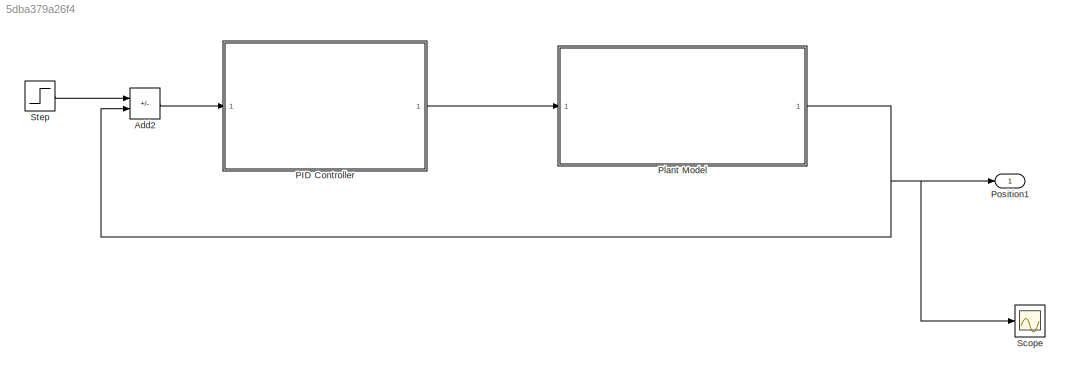
MODEL slx_5dba379a26f4
KIND model
CONFIG AbsTol = auto
CONFIG EnableMultiTasking = off
CONFIG FixedStep = auto
CONFIG MaxStep = auto
CONFIG MinStep = auto
CONFIG RelTol = 1e-3
CONFIG SampleTimeConstraint = Unconstrained
CONFIG Solver = VariableStepAuto
CONFIG SolverName = VariableStepAuto
CONFIG StartTime = 0.0
CONFIG StopTime = 10
WORKSPACE source: mxarray member
WORKSPACE J: Simulink.Parameter (value not decoded)
WORKSPACE K: Simulink.Parameter (value not decoded)
WORKSPACE Kd: Simulink.Parameter (value not decoded)
WORKSPACE Ki: Simulink.Parameter (value not decoded)
WORKSPACE Kp: Simulink.Parameter (value not decoded)
WORKSPACE L: Simulink.Parameter (value not decoded)
WORKSPACE R: Simulink.Parameter (value not decoded)
WORKSPACE b: Simulink.Parameter (value not decoded)
BLOCK [Sum] Add2
  IconShape = rectangular
  Inputs = +-
  Ports = [2, 1]
BLOCK [ModelReference] PID Controller
  ModelNameDialog = Subsystem
  ModelReferenceVersion = 1.14
  Ports = [1, 1]
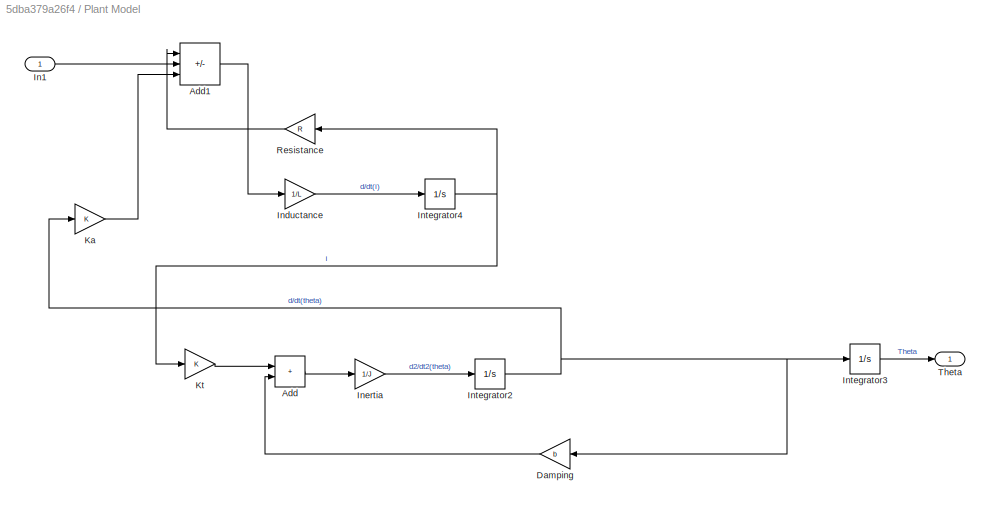
BLOCK [SubSystem] Plant Model
  Ports = [1, 1]
  RequestExecContextInheritance = off
BLOCK [Sum] Plant Model/Add
  IconShape = rectangular
  Ports = [2, 1]
BLOCK [Sum] Plant Model/Add1
  IconShape = rectangular
  Inputs = -+-
  Ports = [3, 1]
BLOCK [Gain] Plant Model/Damping
  Gain = b
  NameLocation = top
BLOCK [Inport] Plant Model/In1
BLOCK [Gain] Plant Model/Inductance
  Gain = 1/L
BLOCK [Gain] Plant Model/Inertia
  Gain = 1/J
BLOCK [Integrator] Plant Model/Integrator2
  Ports = [1, 1]
BLOCK [Integrator] Plant Model/Integrator3
  Ports = [1, 1]
BLOCK [Integrator] Plant Model/Integrator4
  Ports = [1, 1]
BLOCK [Gain] Plant Model/Ka
  Gain = K
BLOCK [Gain] Plant Model/Kt
  Gain = K
BLOCK [Gain] Plant Model/Resistance
  Gain = R
  NameLocation = top
BLOCK [Outport] Plant Model/Theta
BLOCK [Outport] Position1
BLOCK [Scope] Scope
  Floating = off
  NumInputPorts = 1
  Ports = [1]
  ScopeSpecificationString = Simulink.scopes.TimeScopeBlockCfg('CurrentConfiguration', extmgr.ConfigurationSet(extmgr.Configuration('Core','General UI',true),extmgr.Configuration('Core','Source UI',true),extmgr.Configuration('Sources','WiredSimulink',true),extmgr.Configuration('Visuals','Time Domain',true,'SerializedDisplays',{struct('MinYLimReal','-38782811856187075498013547127332566179821672092955038917509070739328495914093...<+2735ch>
BLOCK [Step] Step
  SampleTime = 0
  Time = 0.1
LINE Add2:1 -> PID Controller:1
LINE PID Controller:1 -> Plant Model:1
LINE Plant Model/Add1:1 -> Plant Model/Inductance:1
LINE Plant Model/Add:1 -> Plant Model/Inertia:1
LINE Plant Model/Damping:1 -> Plant Model/Add:2
LINE Plant Model/In1:1 -> Plant Model/Add1:2
LINE Plant Model/Inductance:1 -> Plant Model/Integrator4:1
LINE Plant Model/Inertia:1 -> Plant Model/Integrator2:1
NET Plant Model/Integrator2:1 -> Plant Model/Damping:1, Plant Model/Integrator3:1, Plant Model/Ka:1
LINE Plant Model/Integrator3:1 -> Plant Model/Theta:1
NET Plant Model/Integrator4:1 -> Plant Model/Kt:1, Plant Model/Resistance:1
LINE Plant Model/Ka:1 -> Plant Model/Add1:3
LINE Plant Model/Kt:1 -> Plant Model/Add:1
LINE Plant Model/Resistance:1 -> Plant Model/Add1:1
NET Plant Model:1 -> Add2:2, Position1:1, Scope:1
LINE Step:1 -> Add2:1
note: NET lines group one-source signal fan-out (src -> all destinations, sorted); 1:1 wires keep LINE
